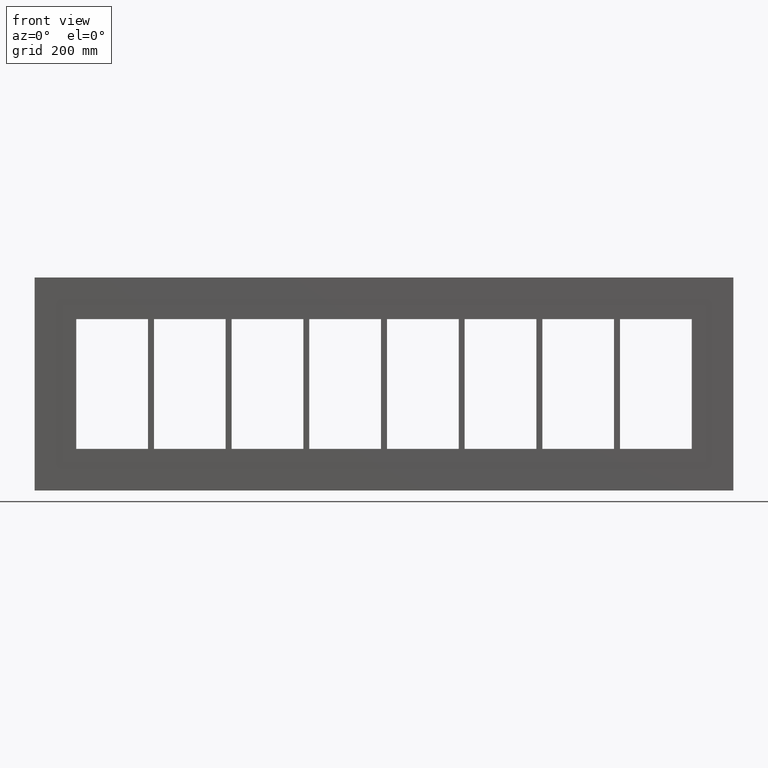
[diagram: clean part render]
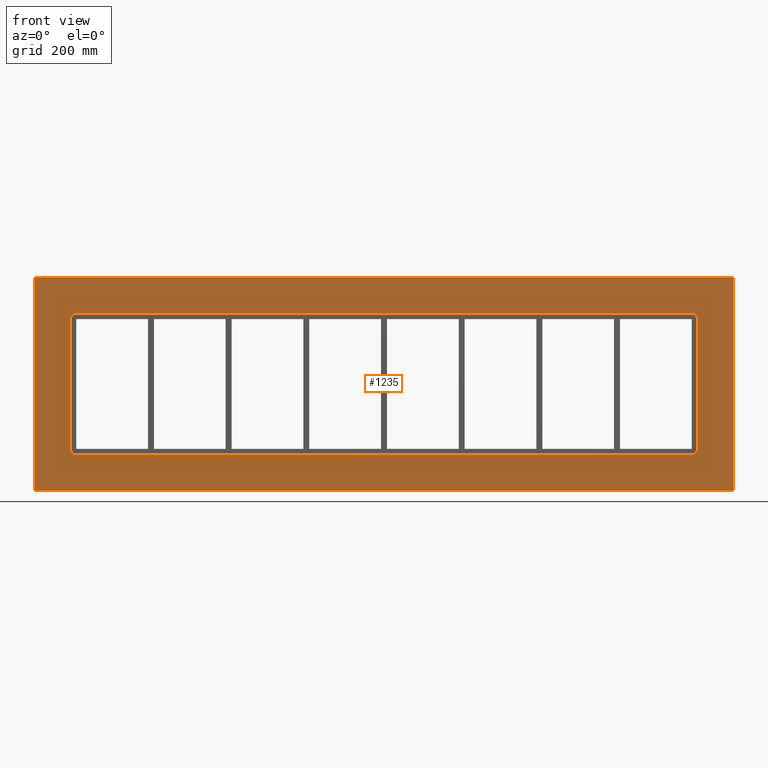
[diagram: same view with one face highlighted and labeled with its STEP entity id]
A machine part, front view. The second image highlights one B-rep face of the part: STEP entity #1235.
In plain terms, the highlighted planar face has unit normal (0, 1, 0).
Its self-contained STEP definition (entity closure, byte-faithful):
#1126=CARTESIAN_POINT('',(-4.452487E-014,0.0,3.754467E-014));
#1127=DIRECTION('',(0.0,1.0,0.0));
#1128=DIRECTION('',(0.0,0.0,1.0));
#1129=AXIS2_PLACEMENT_3D('',#1126,#1127,#1128);
#1130=PLANE('',#1129);
#1131=CARTESIAN_POINT('',(-587.0,0.0,179.0));
#1132=VERTEX_POINT('',#1131);
#1133=CARTESIAN_POINT('',(587.0,0.0,179.0));
#1134=VERTEX_POINT('',#1133);
#1135=CARTESIAN_POINT('',(-587.0,0.0,179.0));
#1136=DIRECTION('',(1.0,0.0,0.0));
#1137=VECTOR('',#1136,1174.0);
#1138=LINE('',#1135,#1137);
#1139=EDGE_CURVE('',#1132,#1134,#1138,.T.);
#1140=ORIENTED_EDGE('',*,*,#1139,.F.);
#1141=CARTESIAN_POINT('',(-587.0,0.0,-178.99999999999991));
#1142=VERTEX_POINT('',#1141);
#1143=CARTESIAN_POINT('',(-587.0,0.0,-178.99999999999991));
#1144=DIRECTION('',(0.0,0.0,1.0));
#1145=VECTOR('',#1144,357.99999999999989);
#1146=LINE('',#1143,#1145);
#1147=EDGE_CURVE('',#1142,#1132,#1146,.T.);
#1148=ORIENTED_EDGE('',*,*,#1147,.F.);
#1149=CARTESIAN_POINT('',(587.0,0.0,-178.99999999999991));
#1150=VERTEX_POINT('',#1149);
#1151=CARTESIAN_POINT('',(587.0,0.0,-178.99999999999991));
#1152=DIRECTION('',(-1.0,0.0,0.0));
#1153=VECTOR('',#1152,1174.0);
#1154=LINE('',#1151,#1153);
#1155=EDGE_CURVE('',#1150,#1142,#1154,.T.);
#1156=ORIENTED_EDGE('',*,*,#1155,.F.);
#1157=CARTESIAN_POINT('',(587.0,0.0,179.0));
#1158=DIRECTION('',(0.0,0.0,-1.0));
#1159=VECTOR('',#1158,357.99999999999989);
#1160=LINE('',#1157,#1159);
#1161=EDGE_CURVE('',#1134,#1150,#1160,.T.);
#1162=ORIENTED_EDGE('',*,*,#1161,.F.);
#1163=EDGE_LOOP('',(#1140,#1148,#1156,#1162));
#1164=FACE_OUTER_BOUND('',#1163,.T.);
#1165=CARTESIAN_POINT('',(-527.0,0.0,-109.00000000000003));
#1166=VERTEX_POINT('',#1165);
#1167=CARTESIAN_POINT('',(-517.0,0.0,-119.00000000000003));
#1168=VERTEX_POINT('',#1167);
#1169=CARTESIAN_POINT('',(-517.0,0.0,-109.00000000000003));
#1170=DIRECTION('',(0.0,-1.0,0.0));
#1171=DIRECTION('',(-0.707106781186547,0.0,-0.707106781186547));
#1172=AXIS2_PLACEMENT_3D('',#1169,#1170,#1171);
#1173=CIRCLE('',#1172,9.999999999999998);
#1174=EDGE_CURVE('',#1166,#1168,#1173,.T.);
#1175=ORIENTED_EDGE('',*,*,#1174,.F.);
#1176=CARTESIAN_POINT('',(-527.0,0.0,108.99999999999999));
#1177=VERTEX_POINT('',#1176);
#1178=CARTESIAN_POINT('',(-527.0,0.0,108.99999999999997));
#1179=DIRECTION('',(0.0,0.0,-1.0));
#1180=VECTOR('',#1179,218.0);
#1181=LINE('',#1178,#1180);
#1182=EDGE_CURVE('',#1177,#1166,#1181,.T.);
#1183=ORIENTED_EDGE('',*,*,#1182,.F.);
#1184=CARTESIAN_POINT('',(-517.0,0.0,118.99999999999999));
#1185=VERTEX_POINT('',#1184);
#1186=CARTESIAN_POINT('',(-517.0,0.0,108.99999999999999));
#1187=DIRECTION('',(0.0,-1.0,0.0));
#1188=DIRECTION('',(-0.707106781186547,0.0,0.707106781186547));
#1189=AXIS2_PLACEMENT_3D('',#1186,#1187,#1188);
#1190=CIRCLE('',#1189,9.999999999999998);
#1191=EDGE_CURVE('',#1185,#1177,#1190,.T.);
#1192=ORIENTED_EDGE('',*,*,#1191,.F.);
#1193=CARTESIAN_POINT('',(517.0,0.0,118.99999999999999));
#1194=VERTEX_POINT('',#1193);
#1195=CARTESIAN_POINT('',(517.0,0.0,118.99999999999999));
#1196=DIRECTION('',(-1.0,0.0,0.0));
#1197=VECTOR('',#1196,1034.0);
#1198=LINE('',#1195,#1197);
#1199=EDGE_CURVE('',#1194,#1185,#1198,.T.);
#1200=ORIENTED_EDGE('',*,*,#1199,.F.);
#1201=CARTESIAN_POINT('',(527.0,0.0,108.99999999999999));
#1202=VERTEX_POINT('',#1201);
#1203=CARTESIAN_POINT('',(517.0,0.0,108.99999999999999));
#1204=DIRECTION('',(0.0,-1.0,0.0));
#1205=DIRECTION('',(0.707106781186547,0.0,0.707106781186547));
#1206=AXIS2_PLACEMENT_3D('',#1203,#1204,#1205);
#1207=CIRCLE('',#1206,9.999999999999998);
#1208=EDGE_CURVE('',#1202,#1194,#1207,.T.);
#1209=ORIENTED_EDGE('',*,*,#1208,.F.);
#1210=CARTESIAN_POINT('',(527.0,0.0,-109.00000000000003));
#1211=VERTEX_POINT('',#1210);
#1212=CARTESIAN_POINT('',(527.0,0.0,-108.99999999999999));
#1213=DIRECTION('',(0.0,0.0,1.0));
#1214=VECTOR('',#1213,217.99999999999997);
#1215=LINE('',#1212,#1214);
#1216=EDGE_CURVE('',#1211,#1202,#1215,.T.);
#1217=ORIENTED_EDGE('',*,*,#1216,.F.);
#1218=CARTESIAN_POINT('',(517.0,0.0,-119.00000000000003));
#1219=VERTEX_POINT('',#1218);
#1220=CARTESIAN_POINT('',(517.0,0.0,-109.00000000000003));
#1221=DIRECTION('',(0.0,-1.0,0.0));
#1222=DIRECTION('',(0.707106781186547,0.0,-0.707106781186547));
#1223=AXIS2_PLACEMENT_3D('',#1220,#1221,#1222);
#1224=CIRCLE('',#1223,9.999999999999998);
#1225=EDGE_CURVE('',#1219,#1211,#1224,.T.);
#1226=ORIENTED_EDGE('',*,*,#1225,.F.);
#1227=CARTESIAN_POINT('',(-517.0,0.0,-119.00000000000003));
#1228=DIRECTION('',(1.0,0.0,0.0));
#1229=VECTOR('',#1228,1034.0);
#1230=LINE('',#1227,#1229);
#1231=EDGE_CURVE('',#1168,#1219,#1230,.T.);
#1232=ORIENTED_EDGE('',*,*,#1231,.F.);
#1233=EDGE_LOOP('',(#1175,#1183,#1192,#1200,#1209,#1217,#1226,#1232));
#1234=FACE_BOUND('',#1233,.T.);
#1235=ADVANCED_FACE('',(#1164,#1234),#1130,.F.);